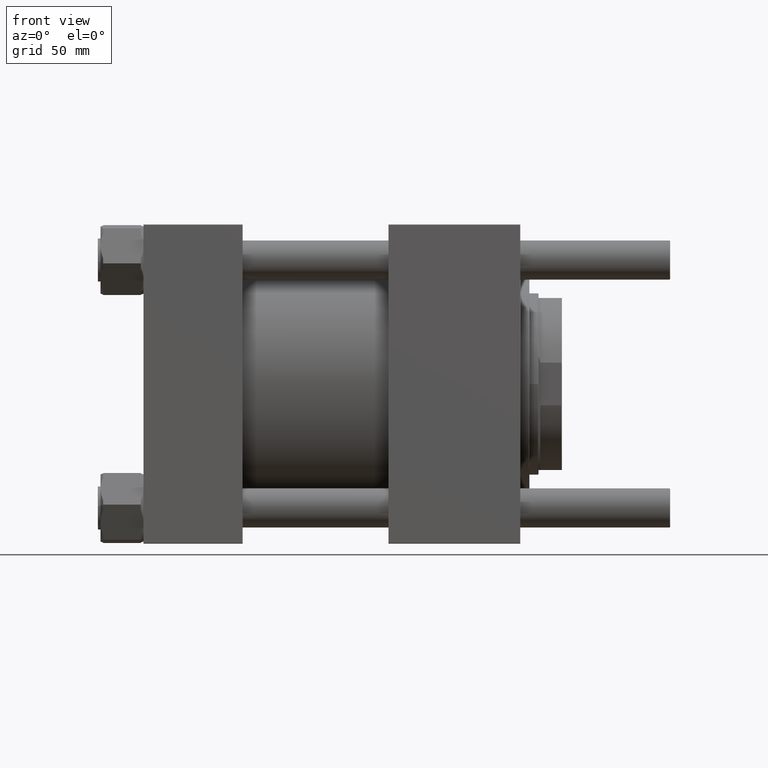
[diagram: clean part render]
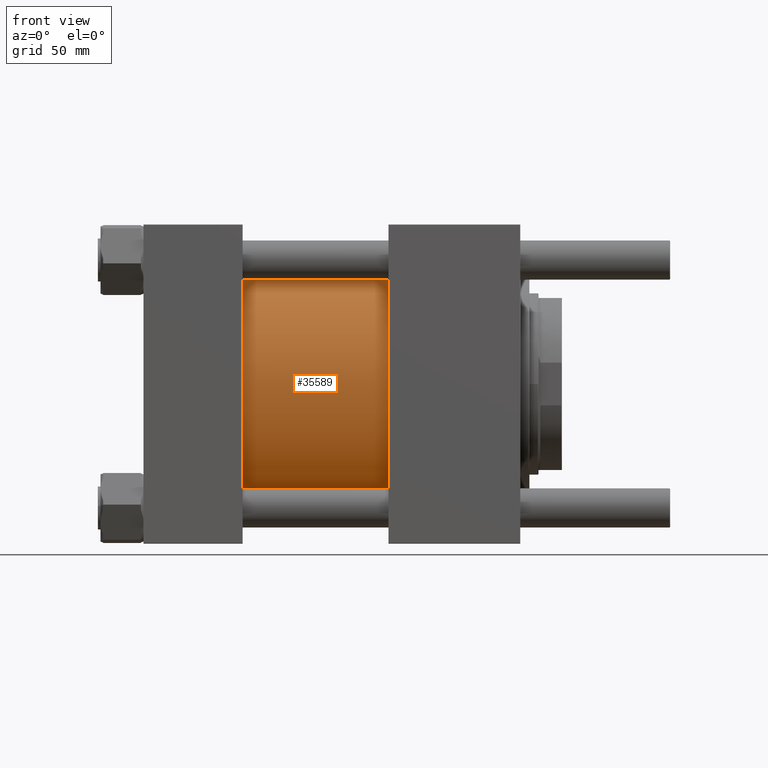
[diagram: same view with one face highlighted and labeled with its STEP entity id]
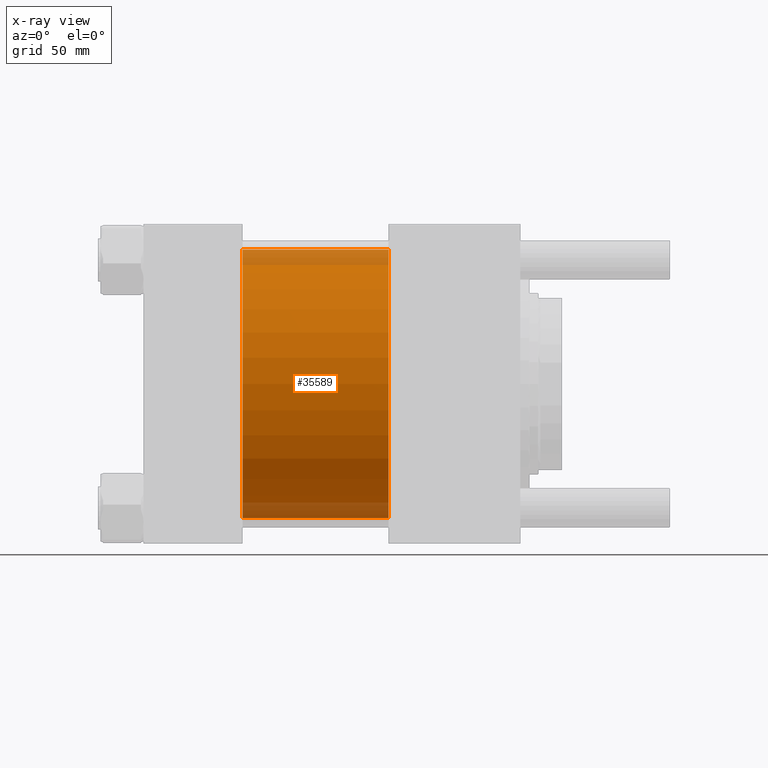
[diagram: x-ray of the same camera — body ghosted, the highlighted face saturated]
A machine part, front view. The second image highlights one B-rep face of the part: STEP entity #35589.
The next image is the same camera in x-ray: the body ghosted, the highlighted face saturated — about 12% of this face is hidden behind the body in this view.
In plain terms, the highlighted cylindrical surface (partial cylindrical patch) has radius 103 mm, axis along (-1, -0, -0).
Its self-contained STEP definition (entity closure, byte-faithful):
#536 = CARTESIAN_POINT ( 'NONE',  ( 188.0000000000000000, -2.602085213965210642E-15, 0.000000000000000000 ) ) ;
#4310 = DIRECTION ( 'NONE',  ( 0.000000000000000000, 0.000000000000000000, -1.000000000000000000 ) ) ;
#4328 = CARTESIAN_POINT ( 'NONE',  ( 188.0000000000000000, 1.001177681725252697E-14, -103.0000000000000000 ) ) ;
#6258 = EDGE_CURVE ( 'NONE', #47602, #37351, #40626, .T. ) ;
#7805 = ORIENTED_EDGE ( 'NONE', *, *, #8753, .F. ) ;
#8753 = EDGE_CURVE ( 'NONE', #21290, #25493, #24075, .T. ) ;
#10687 = CYLINDRICAL_SURFACE ( 'NONE', #17984, 103.0000000000000000 ) ;
#17067 = DIRECTION ( 'NONE',  ( 0.000000000000000000, 0.000000000000000000, 1.000000000000000000 ) ) ;
#17984 = AXIS2_PLACEMENT_3D ( 'NONE', #32447, #31353, #46071 ) ;
#18002 = EDGE_CURVE ( 'NONE', #21290, #47602, #35360, .T. ) ;
#20043 = CARTESIAN_POINT ( 'NONE',  ( 76.00000000000000000, 1.001177681725252697E-14, -103.0000000000000000 ) ) ;
#21290 = VERTEX_POINT ( 'NONE', #30811 ) ;
#23036 = AXIS2_PLACEMENT_3D ( 'NONE', #43183, #44027, #17067 ) ;
#24075 = CIRCLE ( 'NONE', #42583, 103.0000000000000000 ) ;
#25493 = VERTEX_POINT ( 'NONE', #55228 ) ;
#26086 = CARTESIAN_POINT ( 'NONE',  ( 76.00000000000000000, -2.602085213965210642E-15, 103.0000000000000000 ) ) ;
#26945 = CARTESIAN_POINT ( 'NONE',  ( 188.0000000000000000, -2.602085213965210642E-15, 103.0000000000000000 ) ) ;
#27004 = FACE_OUTER_BOUND ( 'NONE', #43816, .T. ) ;
#29969 = ORIENTED_EDGE ( 'NONE', *, *, #47618, .F. ) ;
#30811 = CARTESIAN_POINT ( 'NONE',  ( 188.0000000000000000, -2.602085213965210642E-15, 103.0000000000000000 ) ) ;
#31295 = DIRECTION ( 'NONE',  ( -1.000000000000000000, -0.000000000000000000, -0.000000000000000000 ) ) ;
#31314 = VECTOR ( 'NONE', #39705, 1000.000000000000000 ) ;
#31353 = DIRECTION ( 'NONE',  ( -1.000000000000000000, -0.000000000000000000, -0.000000000000000000 ) ) ;
#32447 = CARTESIAN_POINT ( 'NONE',  ( 188.0000000000000000, -2.602085213965210642E-15, 0.000000000000000000 ) ) ;
#32519 = VECTOR ( 'NONE', #31295, 1000.000000000000000 ) ;
#35360 = LINE ( 'NONE', #26945, #32519 ) ;
#35589 = ADVANCED_FACE ( 'NONE', ( #27004 ), #10687, .T. ) ;
#37351 = VERTEX_POINT ( 'NONE', #20043 ) ;
#37486 = ORIENTED_EDGE ( 'NONE', *, *, #18002, .T. ) ;
#39705 = DIRECTION ( 'NONE',  ( -1.000000000000000000, -0.000000000000000000, -0.000000000000000000 ) ) ;
#40249 = ORIENTED_EDGE ( 'NONE', *, *, #6258, .T. ) ;
#40626 = CIRCLE ( 'NONE', #23036, 103.0000000000000000 ) ;
#42583 = AXIS2_PLACEMENT_3D ( 'NONE', #536, #44042, #4310 ) ;
#43183 = CARTESIAN_POINT ( 'NONE',  ( 76.00000000000000000, -2.602085213965210642E-15, 0.000000000000000000 ) ) ;
#43816 = EDGE_LOOP ( 'NONE', ( #29969, #7805, #37486, #40249 ) ) ;
#44027 = DIRECTION ( 'NONE',  ( 1.000000000000000000, -0.000000000000000000, -0.000000000000000000 ) ) ;
#44042 = DIRECTION ( 'NONE',  ( 1.000000000000000000, 0.000000000000000000, 0.000000000000000000 ) ) ;
#44060 = LINE ( 'NONE', #4328, #31314 ) ;
#46071 = DIRECTION ( 'NONE',  ( 0.000000000000000000, 0.000000000000000000, 1.000000000000000000 ) ) ;
#47602 = VERTEX_POINT ( 'NONE', #26086 ) ;
#47618 = EDGE_CURVE ( 'NONE', #25493, #37351, #44060, .T. ) ;
#55228 = CARTESIAN_POINT ( 'NONE',  ( 188.0000000000000000, 1.001177681725252697E-14, -103.0000000000000000 ) ) ;